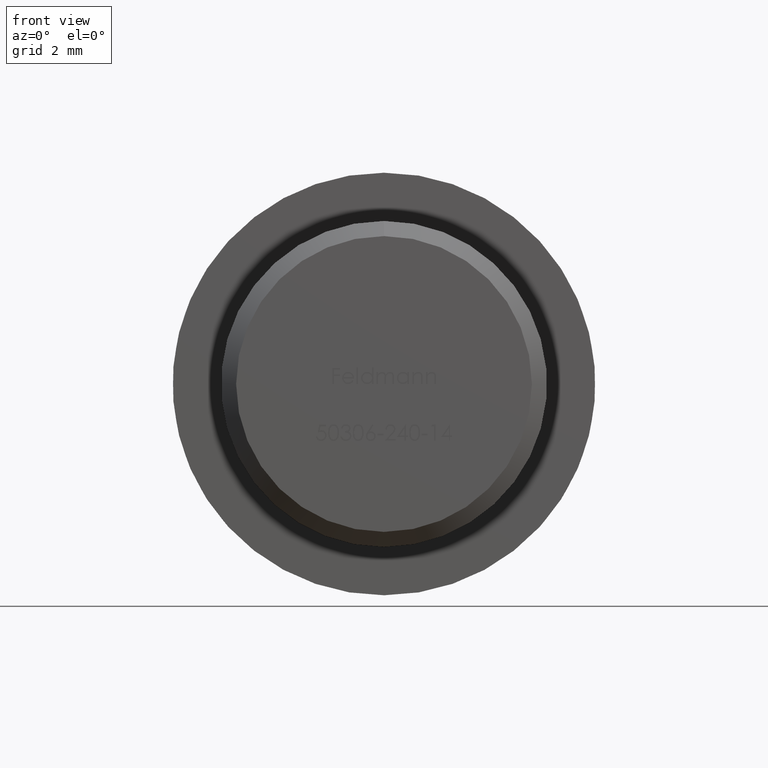
[diagram: clean part render]
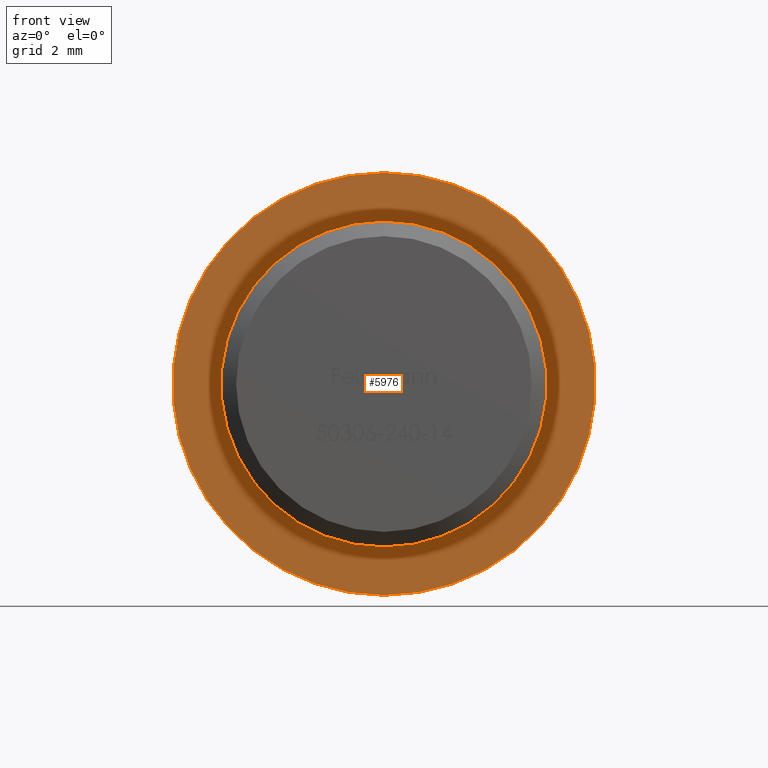
[diagram: same view with one face highlighted and labeled with its STEP entity id]
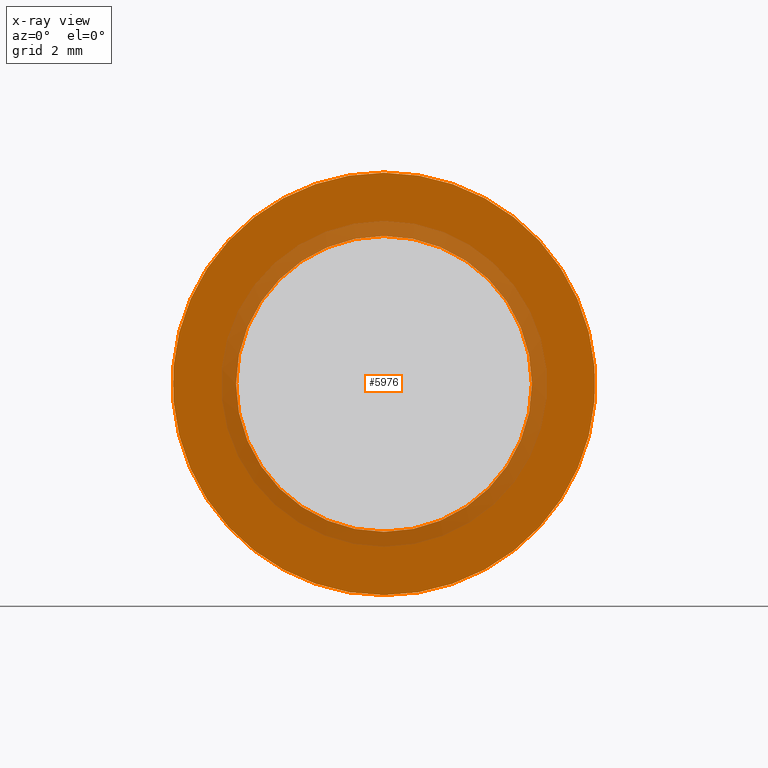
[diagram: x-ray of the same camera — body ghosted, the highlighted face saturated]
A machine part, front view. The second image highlights one B-rep face of the part: STEP entity #5976.
The next image is the same camera in x-ray: the body ghosted, the highlighted face saturated — about 21% of this face is hidden behind the body in this view.
In plain terms, the highlighted planar face has unit normal (0, -1, -0).
Its self-contained STEP definition (entity closure, byte-faithful):
#292 = CARTESIAN_POINT ( 'NONE',  ( 5.400000000000000400, 10.00000000000000000, 0.0000000000000000000 ) ) ;
#334 = AXIS2_PLACEMENT_3D ( 'NONE', #2473, #1196, #3535 ) ;
#380 = DIRECTION ( 'NONE',  ( 0.0000000000000000000, 0.0000000000000000000, -1.000000000000000000 ) ) ;
#1190 = CARTESIAN_POINT ( 'NONE',  ( 0.0000000000000000000, 10.00000000000000000, 0.0000000000000000000 ) ) ;
#1196 = DIRECTION ( 'NONE',  ( -0.0000000000000000000, -1.000000000000000000, -0.0000000000000000000 ) ) ;
#1371 = DIRECTION ( 'NONE',  ( 0.0000000000000000000, -1.000000000000000000, -0.0000000000000000000 ) ) ;
#1401 = CARTESIAN_POINT ( 'NONE',  ( 0.0000000000000000000, 10.00000000000000000, -7.000000000000000000 ) ) ;
#1427 = CIRCLE ( 'NONE', #7273, 7.000000000000000000 ) ;
#1808 = VERTEX_POINT ( 'NONE', #1401 ) ;
#2158 = ORIENTED_EDGE ( 'NONE', *, *, #12588, .F. ) ;
#2473 = CARTESIAN_POINT ( 'NONE',  ( 0.0000000000000000000, 10.00000000000000000, 0.0000000000000000000 ) ) ;
#2474 = DIRECTION ( 'NONE',  ( 0.0000000000000000000, 0.0000000000000000000, -1.000000000000000000 ) ) ;
#2528 = CARTESIAN_POINT ( 'NONE',  ( 8.572527594031474200E-016, 10.00000000000000000, 7.000000000000000900 ) ) ;
#2860 = AXIS2_PLACEMENT_3D ( 'NONE', #1190, #5784, #7986 ) ;
#2930 = CARTESIAN_POINT ( 'NONE',  ( 6.000769315822030700E-016, 10.00000000000000000, 4.899999999999999500 ) ) ;
#3028 = EDGE_CURVE ( 'NONE', #1808, #5459, #13735, .T. ) ;
#3043 = CIRCLE ( 'NONE', #334, 4.899999999999999500 ) ;
#3078 = AXIS2_PLACEMENT_3D ( 'NONE', #7900, #9133, #12455 ) ;
#3535 = DIRECTION ( 'NONE',  ( 0.0000000000000000000, 0.0000000000000000000, -1.000000000000000000 ) ) ;
#4707 = VERTEX_POINT ( 'NONE', #2930 ) ;
#4766 = CARTESIAN_POINT ( 'NONE',  ( 0.0000000000000000000, 10.00000000000000000, 0.0000000000000000000 ) ) ;
#5459 = VERTEX_POINT ( 'NONE', #2528 ) ;
#5784 = DIRECTION ( 'NONE',  ( -0.0000000000000000000, -1.000000000000000000, -0.0000000000000000000 ) ) ;
#5976 = ADVANCED_FACE ( 'NONE', ( #8037, #13333 ), #11526, .T. ) ;
#7273 = AXIS2_PLACEMENT_3D ( 'NONE', #4766, #9271, #2474 ) ;
#7529 = ORIENTED_EDGE ( 'NONE', *, *, #8076, .T. ) ;
#7677 = ORIENTED_EDGE ( 'NONE', *, *, #10135, .F. ) ;
#7843 = CARTESIAN_POINT ( 'NONE',  ( 0.0000000000000000000, 10.00000000000000000, -4.899999999999999500 ) ) ;
#7900 = CARTESIAN_POINT ( 'NONE',  ( 0.0000000000000000000, 10.00000000000000000, 0.0000000000000000000 ) ) ;
#7986 = DIRECTION ( 'NONE',  ( 0.0000000000000000000, 0.0000000000000000000, -1.000000000000000000 ) ) ;
#8037 = FACE_OUTER_BOUND ( 'NONE', #8380, .T. ) ;
#8076 = EDGE_CURVE ( 'NONE', #5459, #1808, #1427, .T. ) ;
#8285 = CIRCLE ( 'NONE', #3078, 4.899999999999999500 ) ;
#8380 = EDGE_LOOP ( 'NONE', ( #12452, #7529 ) ) ;
#9133 = DIRECTION ( 'NONE',  ( -0.0000000000000000000, -1.000000000000000000, -0.0000000000000000000 ) ) ;
#9271 = DIRECTION ( 'NONE',  ( -0.0000000000000000000, -1.000000000000000000, -0.0000000000000000000 ) ) ;
#10135 = EDGE_CURVE ( 'NONE', #13017, #4707, #8285, .T. ) ;
#11332 = AXIS2_PLACEMENT_3D ( 'NONE', #292, #1371, #380 ) ;
#11526 = PLANE ( 'NONE',  #11332 ) ;
#11591 = EDGE_LOOP ( 'NONE', ( #7677, #2158 ) ) ;
#12452 = ORIENTED_EDGE ( 'NONE', *, *, #3028, .T. ) ;
#12455 = DIRECTION ( 'NONE',  ( 0.0000000000000000000, 0.0000000000000000000, -1.000000000000000000 ) ) ;
#12588 = EDGE_CURVE ( 'NONE', #4707, #13017, #3043, .T. ) ;
#13017 = VERTEX_POINT ( 'NONE', #7843 ) ;
#13333 = FACE_BOUND ( 'NONE', #11591, .T. ) ;
#13735 = CIRCLE ( 'NONE', #2860, 7.000000000000000000 ) ;